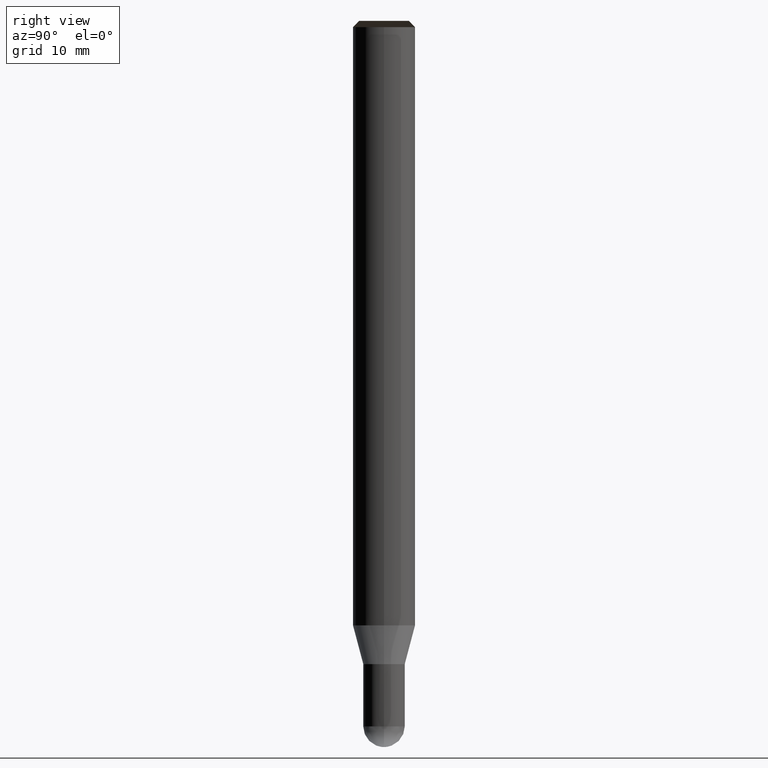
[diagram: clean part render]
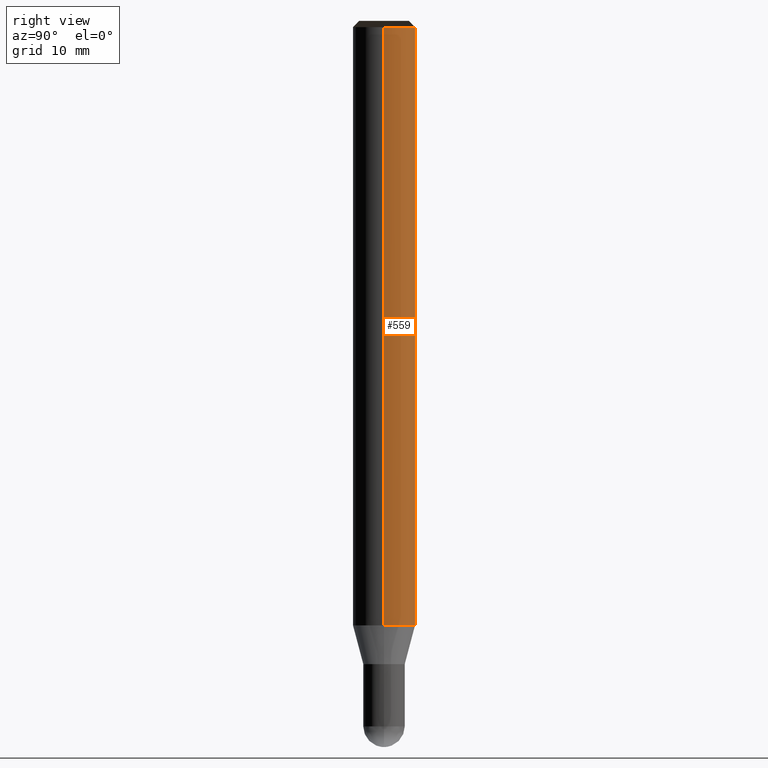
[diagram: same view with one face highlighted and labeled with its STEP entity id]
A machine part, right view. The second image highlights one B-rep face of the part: STEP entity #559.
In plain terms, the highlighted face is a freeform B-spline surface patch.
Its self-contained STEP definition (entity closure, byte-faithful):
#343=CARTESIAN_POINT('',(3.0,0.0,-0.0));
#344=CARTESIAN_POINT('',(3.0,3.0,-0.0));
#345=CARTESIAN_POINT('',(0.0,3.0,-0.0));
#346=CARTESIAN_POINT('',(-3.0,3.0,-0.0));
#347=CARTESIAN_POINT('',(-3.0,0.0,-0.0));
#348=CARTESIAN_POINT('',(3.0,0.0,57.667));
#349=CARTESIAN_POINT('',(3.0,3.0,57.667));
#350=CARTESIAN_POINT('',(0.0,3.0,57.667));
#351=CARTESIAN_POINT('',(-3.0,3.0,57.667));
#352=CARTESIAN_POINT('',(-3.0,0.0,57.667));
#540=(
BOUNDED_SURFACE()
B_SPLINE_SURFACE(1,2,(
(#343,#344,#345,#346,#347),
(#348,#349,#350,#351,#352)
), .UNSPECIFIED.,.F.,.F.,.F.)
B_SPLINE_SURFACE_WITH_KNOTS((2,2),(3,2,3),(
0.0,1.0),(
0.0,0.5,1.0), .UNSPECIFIED.)
GEOMETRIC_REPRESENTATION_ITEM()
RATIONAL_B_SPLINE_SURFACE(((1.0,0.707106781187,1.0,0.707106781187,1.0),
(1.0,0.707106781187,1.0,0.707106781187,1.0)
))
REPRESENTATION_ITEM('')
SURFACE()
);
#541=(
BOUNDED_CURVE()
B_SPLINE_CURVE(2,(#348,#349,#350,#351,#352),.UNSPECIFIED.,.F.,.F.)
B_SPLINE_CURVE_WITH_KNOTS((3,2,3),
(0.0,0.5,1.0),.UNSPECIFIED.)
CURVE()
GEOMETRIC_REPRESENTATION_ITEM()
RATIONAL_B_SPLINE_CURVE((1.0,0.707106781187,1.0,0.707106781187,1.0))
REPRESENTATION_ITEM('')
);
#542=(
BOUNDED_CURVE()
B_SPLINE_CURVE(1,(#352,#347),.UNSPECIFIED.,.F.,.F.)
B_SPLINE_CURVE_WITH_KNOTS((2,2),
(0.0,1.0),.UNSPECIFIED.)
CURVE()
GEOMETRIC_REPRESENTATION_ITEM()
RATIONAL_B_SPLINE_CURVE((1.0,1.0))
REPRESENTATION_ITEM('')
);
#543=(
BOUNDED_CURVE()
B_SPLINE_CURVE(2,(#347,#346,#345,#344,#343),.UNSPECIFIED.,.F.,.F.)
B_SPLINE_CURVE_WITH_KNOTS((3,2,3),
(0.0,0.5,1.0),.UNSPECIFIED.)
CURVE()
GEOMETRIC_REPRESENTATION_ITEM()
RATIONAL_B_SPLINE_CURVE((1.0,0.707106781187,1.0,0.707106781187,1.0))
REPRESENTATION_ITEM('')
);
#544=(
BOUNDED_CURVE()
B_SPLINE_CURVE(1,(#343,#348),.UNSPECIFIED.,.F.,.F.)
B_SPLINE_CURVE_WITH_KNOTS((2,2),
(0.0,1.0),.UNSPECIFIED.)
CURVE()
GEOMETRIC_REPRESENTATION_ITEM()
RATIONAL_B_SPLINE_CURVE((1.0,1.0))
REPRESENTATION_ITEM('')
);
#545=VERTEX_POINT('',#343);
#546=VERTEX_POINT('',#347);
#547=VERTEX_POINT('',#348);
#548=VERTEX_POINT('',#352);
#549=EDGE_CURVE('',#547,#548,#541,.T.);
#550=EDGE_CURVE('',#548,#546,#542,.T.);
#551=EDGE_CURVE('',#546,#545,#543,.T.);
#552=EDGE_CURVE('',#545,#547,#544,.T.);
#553=ORIENTED_EDGE('',*,*,#549,.T.);
#554=ORIENTED_EDGE('',*,*,#550,.T.);
#555=ORIENTED_EDGE('',*,*,#551,.T.);
#556=ORIENTED_EDGE('',*,*,#552,.T.);
#557=EDGE_LOOP('',(#553,#554,#555,#556));
#558=FACE_OUTER_BOUND('',#557,.T.);
#559=ADVANCED_FACE('',(#558),#540,.T.);